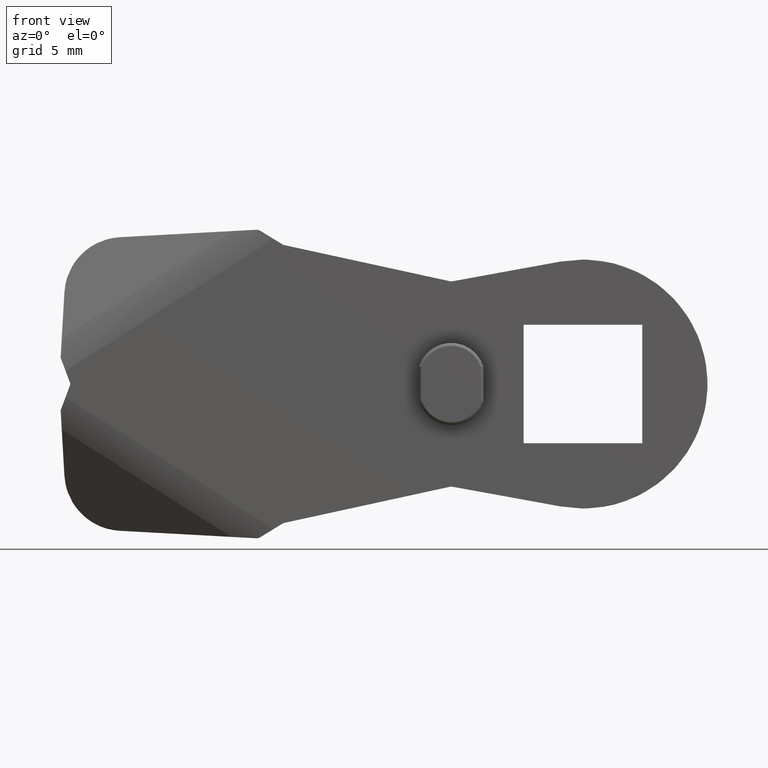
[diagram: clean part render]
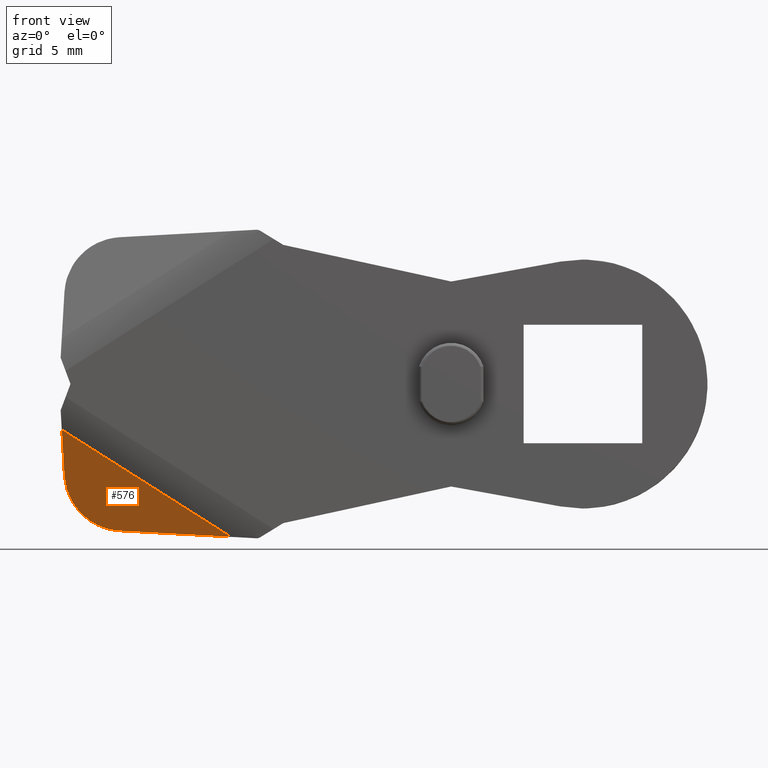
[diagram: same view with one face highlighted and labeled with its STEP entity id]
A machine part, front view. The second image highlights one B-rep face of the part: STEP entity #576.
In plain terms, the highlighted face is a freeform B-spline surface patch.
Its self-contained STEP definition (entity closure, byte-faithful):
#193=CARTESIAN_POINT('',(-31.639469198980152,-1.292340376914348,-10.024053124571640));
#194=VERTEX_POINT('',#193);
#200=CARTESIAN_POINT('',(-35.414167804088997,-1.967354508560100,-6.260583718898571));
#201=VERTEX_POINT('',#200);
#202=CARTESIAN_POINT('',(-35.414167804088997,-1.967354508560100,-6.260583718898571));
#203=CARTESIAN_POINT('',(-35.208168835478304,-0.277081246714915,-9.828685461313551));
#204=CARTESIAN_POINT('',(-31.639469198980152,-1.292340376914348,-10.024053124571640));
#212=(BOUNDED_CURVE()B_SPLINE_CURVE(2,(#202,#203,#204),.UNSPECIFIED.,.F.,.U.)CURVE()GEOMETRIC_REPRESENTATION_ITEM()QUASI_UNIFORM_CURVE()RATIONAL_B_SPLINE_CURVE((1.0,0.745695443793688,1.0))REPRESENTATION_ITEM(''));
#213=EDGE_CURVE('',#201,#194,#212,.T.);
#237=CARTESIAN_POINT('',(-24.030205217989849,-3.457099397804631,-10.440620578942140));
#238=VERTEX_POINT('',#237);
#290=CARTESIAN_POINT('',(-35.595727743302412,-3.457099397804625,-3.115789646242410));
#291=VERTEX_POINT('',#290);
#305=CARTESIAN_POINT('',(-24.030205217989849,-3.457099397804631,-10.440620578942140));
#306=CARTESIAN_POINT('',(-35.595727743302412,-3.457099397804625,-3.115789646242410));
#307=QUASI_UNIFORM_CURVE('',1,(#305,#306),.UNSPECIFIED.,.F.,.U.);
#308=EDGE_CURVE('',#238,#291,#307,.T.);
#552=CARTESIAN_POINT('',(-31.639469198980152,-1.292340376914348,-10.024053124571640));
#553=CARTESIAN_POINT('',(-24.030205217989849,-3.457099397804631,-10.440620578942140));
#554=QUASI_UNIFORM_CURVE('',1,(#552,#553),.UNSPECIFIED.,.F.,.U.);
#555=EDGE_CURVE('',#194,#238,#554,.T.);
#561=CARTESIAN_POINT('',(-35.708014961333127,0.010409586736187,-10.096807956452530));
#562=CARTESIAN_POINT('',(-23.445945321482942,-3.423243078977953,-10.879507986074900));
#563=CARTESIAN_POINT('',(-36.207481140217290,-3.449261010292119,-2.744287345806698));
#564=CARTESIAN_POINT('',(-23.945411500367090,-6.882913676006259,-3.526987375429077));
#565=B_SPLINE_SURFACE_WITH_KNOTS('',1,1,((#561,#563),(#562,#564)),.UNSPECIFIED.,.F.,.F.,.U.,(2,2),(2,2),(0.0,12.757779658611160),(0.0,8.141151419410097),.UNSPECIFIED.);
#566=ORIENTED_EDGE('',*,*,#555,.T.);
#567=ORIENTED_EDGE('',*,*,#308,.T.);
#568=CARTESIAN_POINT('',(-35.595727743302412,-3.457099397804625,-3.115789646242410));
#569=CARTESIAN_POINT('',(-35.414167804088997,-1.967354508560100,-6.260583718898571));
#570=QUASI_UNIFORM_CURVE('',1,(#568,#569),.UNSPECIFIED.,.F.,.U.);
#571=EDGE_CURVE('',#291,#201,#570,.T.);
#572=ORIENTED_EDGE('',*,*,#571,.T.);
#573=ORIENTED_EDGE('',*,*,#213,.T.);
#574=EDGE_LOOP('',(#566,#567,#572,#573));
#575=FACE_OUTER_BOUND('',#574,.T.);
#576=ADVANCED_FACE('',(#575),#565,.T.);